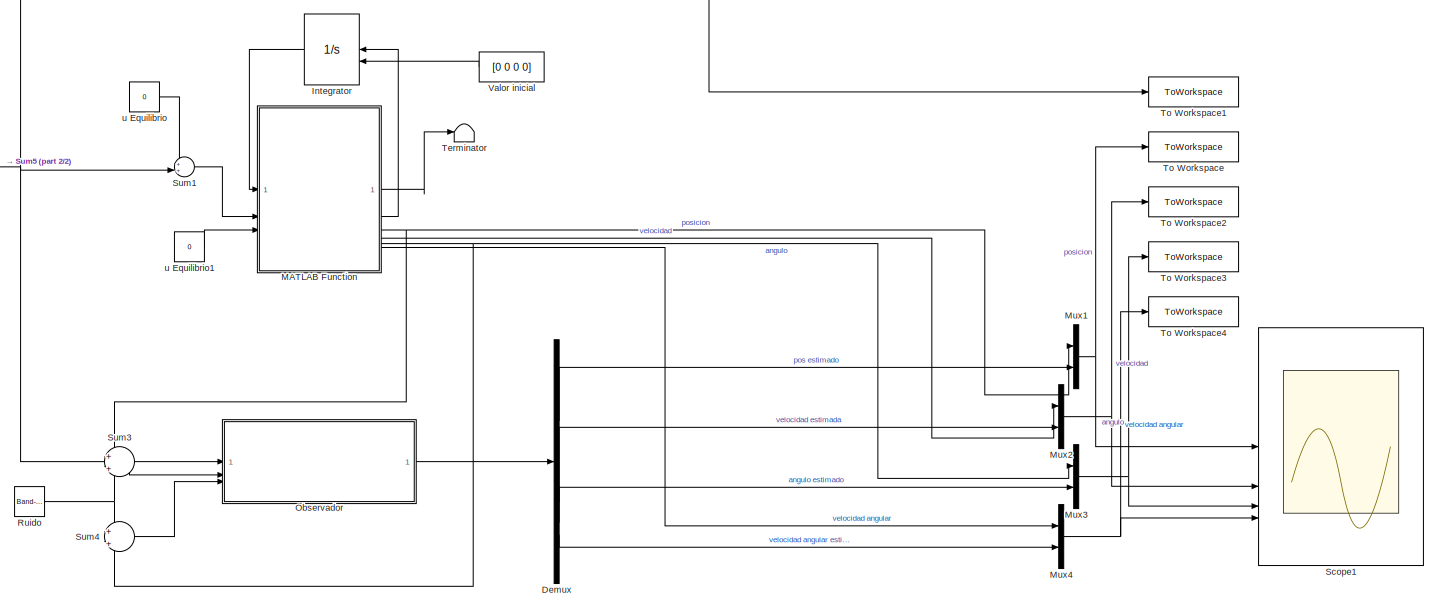
[diagram: root canvas - part 1/2, most of the canvas]
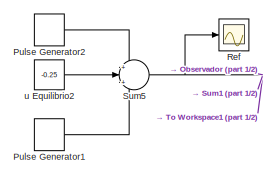
[diagram: root canvas - part 2/2, middle left region]
MODEL slx_372c12ffdd89
KIND model
CONFIG AbsTol = auto
CONFIG EnableMultiTasking = off
CONFIG FixedStep = 0.000001
CONFIG MaxStep = auto
CONFIG MinStep = auto
CONFIG RelTol = 1e-3
CONFIG SampleTimeConstraint = Unconstrained
CONFIG SolverName = VariableStepAuto
CONFIG StartTime = 0.0
CONFIG StopTime = 5
BLOCK [Demux] Demux
BLOCK [Integrator] Integrator
  InitialConditionSource = external
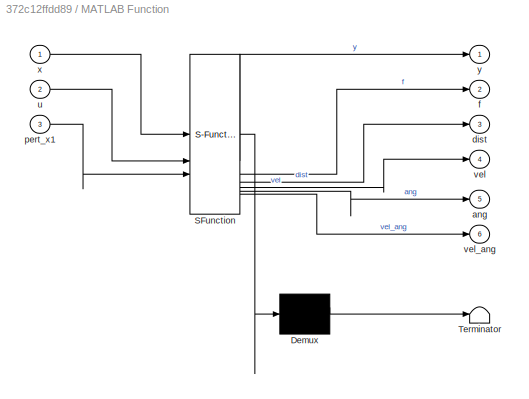
BLOCK [SubSystem] MATLAB Function
  ErrorFcn = Stateflow.Translate.translate
  PermitHierarchicalResolution = ExplicitOnly
  SFBlockType = MATLAB Function
  TreatAsAtomicUnit = on
BLOCK [Demux] MATLAB Function/ Demux 
  Outputs = 1
BLOCK [S-Function] MATLAB Function/ SFunction 
  EnableBusSupport = on
  FunctionName = sf_sfun
  PortCounts = [3 7]
  SFcnIsStateOwnerBlock = off
  SFunctionDeploymentMode = off
  Tag = Stateflow S-Function 2
BLOCK [Terminator] MATLAB Function/ Terminator 
BLOCK [Outport] MATLAB Function/ang
  Port = 5
BLOCK [Outport] MATLAB Function/dist
  Port = 3
BLOCK [Outport] MATLAB Function/f
  Port = 2
BLOCK [Inport] MATLAB Function/pert_x1
  Port = 3
BLOCK [Inport] MATLAB Function/u
  Port = 2
BLOCK [Outport] MATLAB Function/vel
  Port = 4
BLOCK [Outport] MATLAB Function/vel_ang
  Port = 6
BLOCK [Inport] MATLAB Function/x
BLOCK [Outport] MATLAB Function/y
BLOCK [Mux] Mux1
  DisplayOption = bar
  Inputs = 2
BLOCK [Mux] Mux2
  DisplayOption = bar
  Inputs = 2
BLOCK [Mux] Mux3
  DisplayOption = bar
  Inputs = 2
BLOCK [Mux] Mux4
  DisplayOption = bar
  Inputs = 2
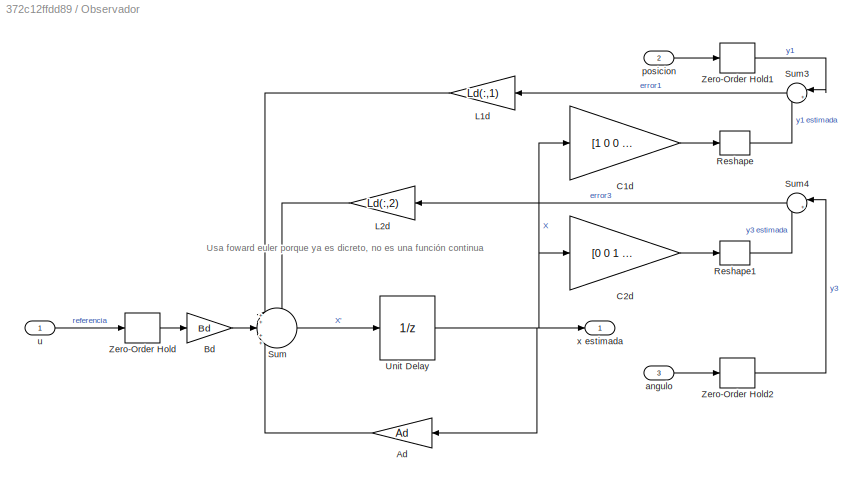
BLOCK [SubSystem] Observador 
BLOCK [Gain] Observador /Ad
  Gain = Ad
  Multiplication = Matrix(K*u)
  NameLocation = top
BLOCK [Gain] Observador /Bd
  Gain = Bd
  Multiplication = Matrix(K*u)
BLOCK [Gain] Observador /C1d
  Gain = [1 0 0 0]
  Multiplication = Matrix(K*u)
BLOCK [Gain] Observador /C2d
  Gain = [0 0 1 0]
  Multiplication = Matrix(K*u)
BLOCK [Gain] Observador /L1d
  Gain = Ld(:,1)
  NameLocation = top
BLOCK [Gain] Observador /L2d
  Gain = Ld(:,2)
  NameLocation = top
BLOCK [Reshape] Observador /Reshape
BLOCK [Reshape] Observador /Reshape1
  OutputDimensions = [1]
BLOCK [Sum] Observador /Sum
  Inputs = ++|+|++
BLOCK [Sum] Observador /Sum3
  Inputs = |+-
  NameLocation = top
BLOCK [Sum] Observador /Sum4
  Inputs = |+-
  NameLocation = top
BLOCK [UnitDelay] Observador /Unit Delay
  HasFrameUpgradeWarning = on
  SampleTime = 0.02
BLOCK [ZeroOrderHold] Observador /Zero-Order Hold
  SampleTime = 0.02
BLOCK [ZeroOrderHold] Observador /Zero-Order Hold1
  SampleTime = 0.02
BLOCK [ZeroOrderHold] Observador /Zero-Order Hold2
  SampleTime = 0.02
BLOCK [Inport] Observador /angulo
  Port = 3
BLOCK [Inport] Observador /posicion
  Port = 2
BLOCK [Inport] Observador /u
BLOCK [Outport] Observador /x estimada
BLOCK [DiscretePulseGenerator] Pulse Generator1
  Amplitude = 0.25
  Period = 100
  PhaseDelay = 40
  PulseWidth = 60
  SampleTime = 0.02
BLOCK [DiscretePulseGenerator] Pulse Generator2
  Amplitude = 0.5
  Period = 100
  PulseWidth = 20
  SampleTime = 0.02
BLOCK [Scope] Ref
  Floating = off
  NumInputPorts = 1
  ScopeSpecificationString = Simulink.scopes.TimeScopeBlockCfg('CurrentConfiguration', extmgr.ConfigurationSet(extmgr.Configuration('Core','General UI',true),extmgr.Configuration('Core','Source UI',true),extmgr.Configuration('Sources','WiredSimulink',true,'DataLoggingVariableName','ScopeData1'),extmgr.Configuration('Visuals','Time Domain',true,'SerializedDisplays',{struct('MinYLimReal','-2.95444','MaxYLimReal','2.11034','YLab...<+1468ch>
BLOCK [Reference] Ruido  REF=simulink/Sources/Band-Limited
White Noise
  Commented = on
  SourceBlock = simulink/Sources/Band-Limited\nWhite Noise
  SourceType = Band-Limited White Noise.
BLOCK [Scope] Scope1
  Floating = off
  NumInputPorts = 4
  ScopeSpecificationString = Simulink.scopes.TimeScopeBlockCfg('CurrentConfiguration', extmgr.ConfigurationSet(extmgr.Configuration('Core','General UI',true,'FigureColor',[0.8 0.8 0.8]),extmgr.Configuration('Core','Source UI',true),extmgr.Configuration('Sources','WiredSimulink',true,'DataLoggingVariableName','ScopeData1'),extmgr.Configuration('Visuals','Time Domain',true,'SerializedDisplays',{struct('MinYLimReal','-0.00716','...<+4717ch>
BLOCK [Sum] Sum1
  Inputs = ++|
  NameLocation = top
BLOCK [Sum] Sum3
  Inputs = +|+
  NameLocation = top
BLOCK [Sum] Sum4
  Inputs = +|+
  NameLocation = top
BLOCK [Sum] Sum5
  Inputs = +|+|+
  NameLocation = top
BLOCK [Terminator] Terminator
BLOCK [ToWorkspace] To Workspace
  FixptAsFi = on
  MaxDataPoints = inf
  SampleTime = 0.02
  Save2DSignal = 2-D array (concatenate along first dimension)
  VariableName = pos
BLOCK [ToWorkspace] To Workspace1
  FixptAsFi = on
  MaxDataPoints = inf
  SampleTime = 0.02
  Save2DSignal = 2-D array (concatenate along first dimension)
  VariableName = ref
BLOCK [ToWorkspace] To Workspace2
  FixptAsFi = on
  MaxDataPoints = inf
  SampleTime = 0.02
  Save2DSignal = 2-D array (concatenate along first dimension)
  VariableName = vel
BLOCK [ToWorkspace] To Workspace3
  FixptAsFi = on
  MaxDataPoints = inf
  SampleTime = 0.02
  Save2DSignal = 2-D array (concatenate along first dimension)
  VariableName = ang
BLOCK [ToWorkspace] To Workspace4
  FixptAsFi = on
  MaxDataPoints = inf
  SampleTime = 0.02
  Save2DSignal = 2-D array (concatenate along first dimension)
  VariableName = velang
BLOCK [Constant] Valor inicial
  Value = [0 0 0 0]
BLOCK [Constant] u Equilibrio
  Value = 0
BLOCK [Constant] u Equilibrio1
  Value = 0
BLOCK [Constant] u Equilibrio2
  SampleTime = 0.02
  Value = -0.25
ANNOTATION Observador : Usa foward euler porque ya es dicreto, no es una función continua
LINE Demux:1 -> Mux1:2
LINE Demux:2 -> Mux2:2
LINE Demux:3 -> Mux3:2
LINE Demux:4 -> Mux4:2
LINE Integrator:1 -> MATLAB Function:1
LINE MATLAB Function:1 -> Terminator:1
LINE MATLAB Function:2 -> Integrator:1
NET MATLAB Function:3 -> Mux1:1, Sum3:1
LINE MATLAB Function:4 -> Mux2:1
NET MATLAB Function:5 -> Mux3:1, Sum4:2
LINE MATLAB Function:6 -> Mux4:1
NET Mux1:1 -> Scope1:1, To Workspace:1
NET Mux2:1 -> Scope1:2, To Workspace2:1
NET Mux3:1 -> Scope1:3, To Workspace3:1
NET Mux4:1 -> Scope1:4, To Workspace4:1
LINE Observador /Ad:1 -> Observador /Sum:4
LINE Observador /Bd:1 -> Observador /Sum:3
LINE Observador /C1d:1 -> Observador /Reshape:1
LINE Observador /C2d:1 -> Observador /Reshape1:1
LINE Observador /L1d:1 -> Observador /Sum:2
LINE Observador /L2d:1 -> Observador /Sum:1
LINE Observador /Reshape1:1 -> Observador /Sum4:2
LINE Observador /Reshape:1 -> Observador /Sum3:2
LINE Observador /Sum3:1 -> Observador /L1d:1
LINE Observador /Sum4:1 -> Observador /L2d:1
LINE Observador /Sum:1 -> Observador /Unit Delay:1
NET Observador /Unit Delay:1 -> Observador /Ad:1, Observador /C1d:1, Observador /C2d:1, Observador /x estimada:1
LINE Observador /Zero-Order Hold1:1 -> Observador /Sum3:1
LINE Observador /Zero-Order Hold2:1 -> Observador /Sum4:1
LINE Observador /Zero-Order Hold:1 -> Observador /Bd:1
LINE Observador /angulo:1 -> Observador /Zero-Order Hold2:1
LINE Observador /posicion:1 -> Observador /Zero-Order Hold1:1
LINE Observador /u:1 -> Observador /Zero-Order Hold:1
LINE Observador :1 -> Demux:1
LINE Pulse Generator1:1 -> Sum5:3
LINE Pulse Generator2:1 -> Sum5:1
NET Ruido:1 -> Sum3:2, Sum4:1
LINE Sum1:1 -> MATLAB Function:2
LINE Sum3:1 -> Observador :2
LINE Sum4:1 -> Observador :3
NET Sum5:1 -> Observador :1, Ref:1, Sum1:2, To Workspace1:1
LINE Valor inicial:1 -> Integrator:2
LINE u Equilibrio1:1 -> MATLAB Function:3
LINE u Equilibrio2:1 -> Sum5:2
LINE u Equilibrio:1 -> Sum1:1
note: NET lines group one-source signal fan-out (src -> all destinations, sorted); 1:1 wires keep LINE
CHART MATLAB Function states=1 transitions=1
  STATE_LABEL 'eML_blk_kernel()'
  STATE_LABEL 'SCRIPT:\nfunction [y, f,dist,vel,ang,vel_ang] = fcn(x, u, pert_x1)\n    \n    g = 9.81; %kg m/s2\n    m = 0.047; %kg\n    kv = 0.2;\n    R = 0.02;\n    mr = 0.00275;\n    J = 0.5*4*mr*power(R,2);\n    \n    x(1) = x(1) + pert_x1;\n\n    %Dinamica\n    f1 = x(2);\n    f2 = (m*g*sin(x(3)) - kv * x(2)) * 1/(m + (J/power(R,2)));\n    f3 = x(4);\n    f4 = -20.73 * x(4) - 154.47*x(3) + u * 64.89;\n\n    y = x(1);\n    f =...<+80ch>'
CHART  states=0 transitions=0
